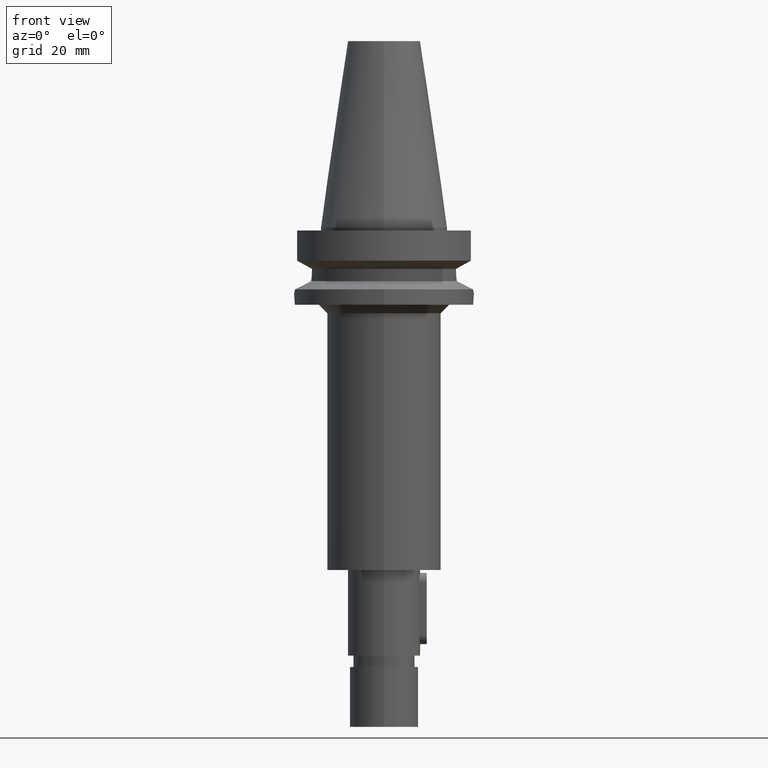
[diagram: clean part render]
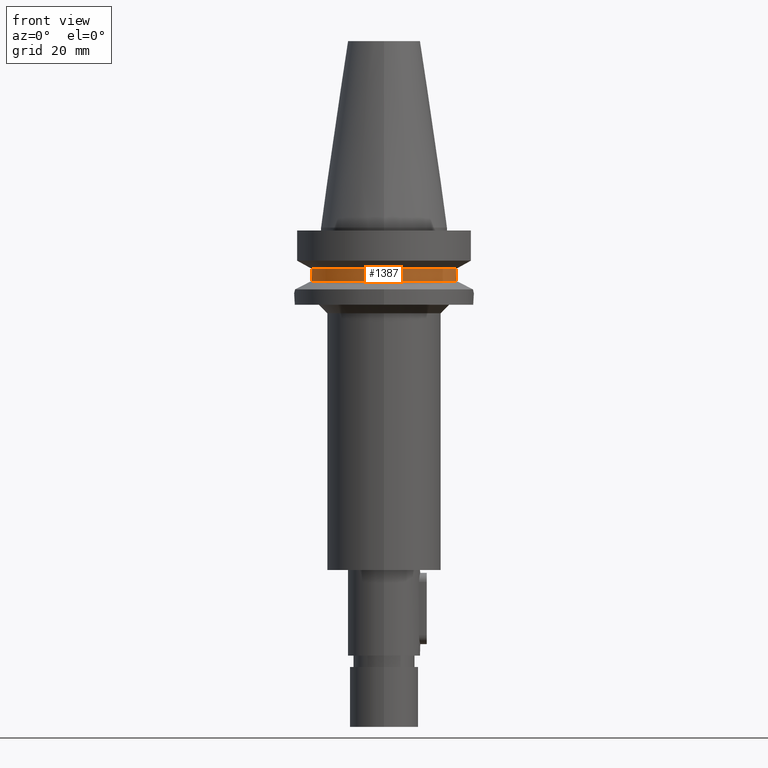
[diagram: same view with one face highlighted and labeled with its STEP entity id]
A machine part, front view. The second image highlights one B-rep face of the part: STEP entity #1387.
In plain terms, the highlighted cylindrical surface (partial cylindrical patch) has radius 26.5 mm, axis along (0, 0, -1).
Its self-contained STEP definition (entity closure, byte-faithful):
#217=DIRECTION('',(-2.936548755726E-6,9.210088831164E-6,9.999999999533E-1));
#218=VECTOR('',#217,4.977079741694E-1);
#219=CARTESIAN_POINT('',(-2.524772266958E1,-8.05E0,-1.495E1));
#220=LINE('',#219,#218);
#224=DIRECTION('',(1.016655027074E-6,3.188601129084E-6,-9.999999999944E-1));
#225=VECTOR('',#224,4.977551285587E-1);
#226=CARTESIAN_POINT('',(2.524772216353E1,-8.050001587143E0,-1.445224487144E1));
#227=LINE('',#226,#225);
#231=CARTESIAN_POINT('',(2.524772266958E1,-8.05E0,-1.495E1));
#232=CARTESIAN_POINT('',(2.524772266958E1,-8.05E0,-1.538864973458E1));
#233=CARTESIAN_POINT('',(2.527037667117E1,-7.979489789330E0,-1.625511069971E1));
#234=CARTESIAN_POINT('',(2.536989455534E1,-7.660317593038E0,-1.753933016913E1));
#235=CARTESIAN_POINT('',(2.547274921989E1,-7.310100799879E0,-1.835107577126E1));
#236=CARTESIAN_POINT('',(2.553175183775E1,-7.097862220093E0,-1.874774300139E1));
#241=CARTESIAN_POINT('',(-2.553175183775E1,-7.097862220093E0,
-1.874774300139E1));
#242=CARTESIAN_POINT('',(-2.547274155935E1,-7.310128355643E0,
-1.835102427040E1));
#243=CARTESIAN_POINT('',(-2.536988024964E1,-7.660364704087E0,
-1.753920094811E1));
#244=CARTESIAN_POINT('',(-2.527037050211E1,-7.979508969674E0,
-1.625497353179E1));
#245=CARTESIAN_POINT('',(-2.524772266958E1,-8.05E0,-1.538859071303E1));
#246=CARTESIAN_POINT('',(-2.524772266958E1,-8.05E0,-1.495E1));
#267=CARTESIAN_POINT('',(0.E0,1.065333950388E-14,-1.445225699861E1));
#268=DIRECTION('',(0.E0,0.E0,-1.E0));
#269=DIRECTION('',(9.527442516822E-1,-3.037735849057E-1,0.E0));
#270=AXIS2_PLACEMENT_3D('',#267,#268,#269);
#275=CARTESIAN_POINT('',(0.E0,1.065333950388E-14,-1.445225699861E1));
#276=DIRECTION('',(0.E0,0.E0,-1.E0));
#277=DIRECTION('',(0.E0,-1.E0,0.E0));
#278=AXIS2_PLACEMENT_3D('',#275,#276,#277);
#469=CARTESIAN_POINT('',(0.E0,0.E0,-1.874774300139E1));
#470=DIRECTION('',(0.E0,0.E0,1.E0));
#471=DIRECTION('',(-9.634623335001E-1,-2.678438573620E-1,0.E0));
#472=AXIS2_PLACEMENT_3D('',#469,#470,#471);
#477=CARTESIAN_POINT('',(0.E0,0.E0,-1.874774300139E1));
#478=DIRECTION('',(0.E0,0.E0,1.E0));
#479=DIRECTION('',(0.E0,-1.E0,0.E0));
#480=AXIS2_PLACEMENT_3D('',#477,#478,#479);
#1112=CARTESIAN_POINT('',(-2.524772266958E1,-8.05E0,-1.495E1));
#1113=CARTESIAN_POINT('',(-2.524772413112E1,-8.049995416065E0,
-1.445229202585E1));
#1114=VERTEX_POINT('',#1112);
#1115=VERTEX_POINT('',#1113);
#1118=CARTESIAN_POINT('',(2.524772266958E1,-8.05E0,-1.445225699861E1));
#1119=CARTESIAN_POINT('',(0.E0,-2.65E1,-1.445225699861E1));
#1120=VERTEX_POINT('',#1118);
#1121=VERTEX_POINT('',#1119);
#1122=CARTESIAN_POINT('',(2.524772266958E1,-8.05E0,-1.495E1));
#1123=VERTEX_POINT('',#1122);
#1124=VERTEX_POINT('',#236);
#1125=CARTESIAN_POINT('',(0.E0,-2.65E1,-1.874774300139E1));
#1126=VERTEX_POINT('',#1125);
#1127=CARTESIAN_POINT('',(-2.553175183775E1,-7.097862220094E0,
-1.874774300139E1));
#1128=VERTEX_POINT('',#1127);
#1365=CARTESIAN_POINT('',(0.E0,2.172768351047E-14,7.742E1));
#1366=DIRECTION('',(0.E0,0.E0,-1.E0));
#1367=DIRECTION('',(0.E0,-1.E0,0.E0));
#1368=AXIS2_PLACEMENT_3D('',#1365,#1366,#1367);
#1369=CYLINDRICAL_SURFACE('',#1368,2.65E1);
#1370=ORIENTED_EDGE('',*,*,#1352,.T.);
#1372=ORIENTED_EDGE('',*,*,#1371,.F.);
#1374=ORIENTED_EDGE('',*,*,#1373,.F.);
#1376=ORIENTED_EDGE('',*,*,#1375,.T.);
#1378=ORIENTED_EDGE('',*,*,#1377,.T.);
#1380=ORIENTED_EDGE('',*,*,#1379,.F.);
#1382=ORIENTED_EDGE('',*,*,#1381,.F.);
#1384=ORIENTED_EDGE('',*,*,#1383,.T.);
#1385=EDGE_LOOP('',(#1370,#1372,#1374,#1376,#1378,#1380,#1382,#1384));
#1386=FACE_OUTER_BOUND('',#1385,.F.);
#237=B_SPLINE_CURVE_WITH_KNOTS('',3,(#231,#232,#233,#234,#235,#236),
.UNSPECIFIED.,.F.,.F.,(4,1,1,4),(0.E0,3.333333333333E-1,6.666666666667E-1,1.E0),
.UNSPECIFIED.);
#247=B_SPLINE_CURVE_WITH_KNOTS('',3,(#241,#242,#243,#244,#245,#246),
.UNSPECIFIED.,.F.,.F.,(4,1,1,4),(0.E0,3.333333333333E-1,6.666666666667E-1,1.E0),
.UNSPECIFIED.);
#271=CIRCLE('',#270,2.65E1);
#279=CIRCLE('',#278,2.65E1);
#473=CIRCLE('',#472,2.65E1);
#481=CIRCLE('',#480,2.65E1);
#1352=EDGE_CURVE('',#1114,#1115,#220,.T.);
#1371=EDGE_CURVE('',#1121,#1115,#279,.T.);
#1373=EDGE_CURVE('',#1120,#1121,#271,.T.);
#1375=EDGE_CURVE('',#1120,#1123,#227,.T.);
#1377=EDGE_CURVE('',#1123,#1124,#237,.T.);
#1379=EDGE_CURVE('',#1126,#1124,#481,.T.);
#1381=EDGE_CURVE('',#1128,#1126,#473,.T.);
#1383=EDGE_CURVE('',#1128,#1114,#247,.T.);
#1387=ADVANCED_FACE('',(#1386),#1369,.T.);